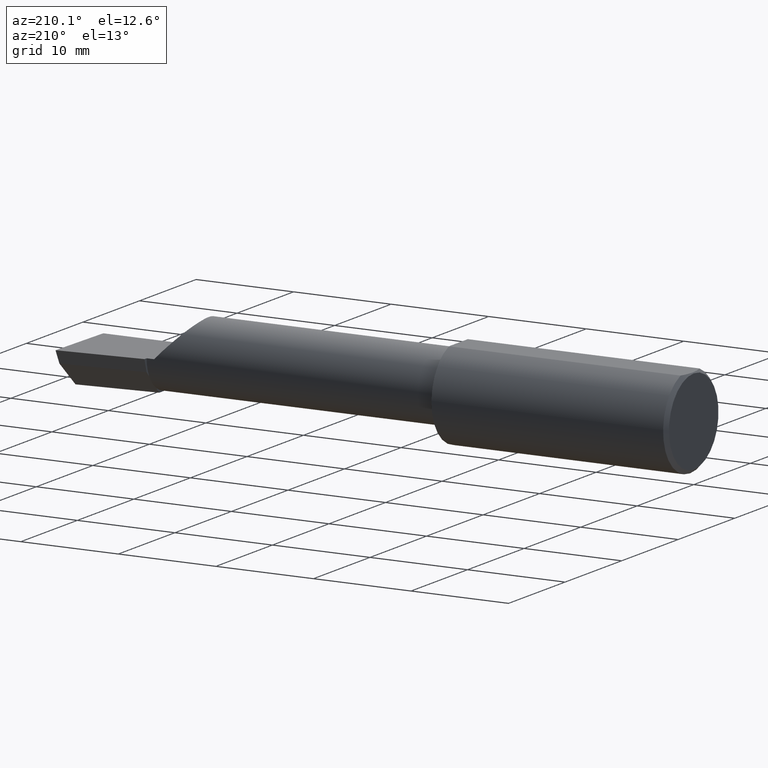
[diagram: clean part render]
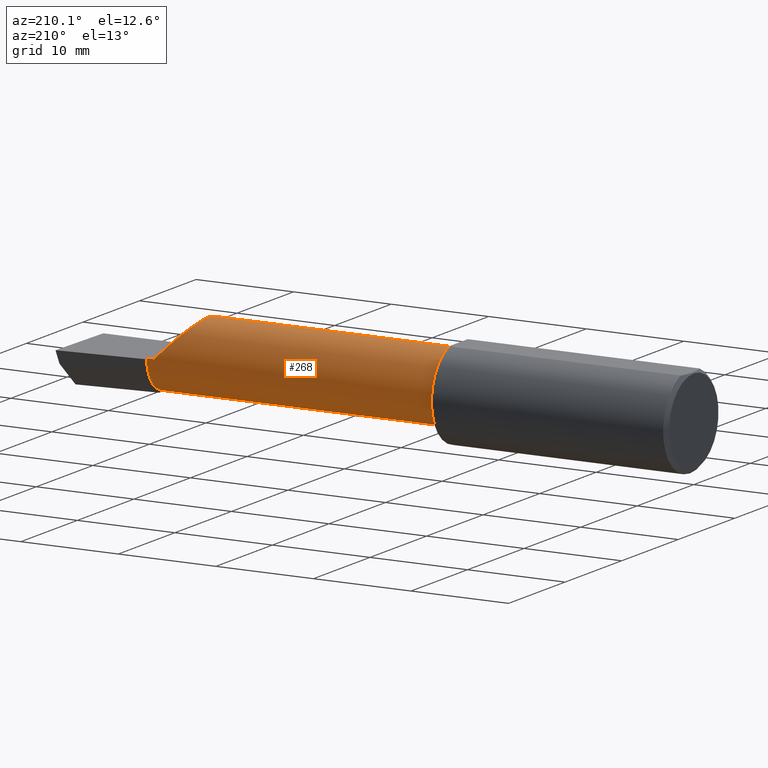
[diagram: same view with one face highlighted and labeled with its STEP entity id]
A machine part, auxiliary view. The second image highlights one B-rep face of the part: STEP entity #268.
In plain terms, the highlighted cylindrical surface (partial cylindrical patch) has radius 3.5573 mm, axis along (-1, -0, -0).
Its self-contained STEP definition (entity closure, byte-faithful):
#11 = CARTESIAN_POINT ( 'NONE',  ( 0.9749999999999999778, -0.1635956445993032859, -0.09130436773856137611 ) ) ;
#12 = VERTEX_POINT ( 'NONE', #504 ) ;
#35 = CARTESIAN_POINT ( 'NONE',  ( 2.500000000000000000, -0.05739999999999999963, -0.1400500000000000633 ) ) ;
#42 = CIRCLE ( 'NONE', #105, 0.1400499999999999245 ) ;
#44 = CARTESIAN_POINT ( 'NONE',  ( -9.564882787816662316E-19, 0.08264999999999995961, 3.267291166268304703E-16 ) ) ;
#46 = ORIENTED_EDGE ( 'NONE', *, *, #97, .T. ) ;
#64 = ORIENTED_EDGE ( 'NONE', *, *, #446, .F. ) ;
#82 = CIRCLE ( 'NONE', #178, 0.1400500000000000356 ) ;
#91 = DIRECTION ( 'NONE',  ( 0.000000000000000000, -1.000000000000000000, 0.000000000000000000 ) ) ;
#92 = AXIS2_PLACEMENT_3D ( 'NONE', #380, #146, #284 ) ;
#94 = CIRCLE ( 'NONE', #337, 0.1400500000000000356 ) ;
#96 = DIRECTION ( 'NONE',  ( -1.000000000000000000, 5.691349986800549142E-18, -0.000000000000000000 ) ) ;
#97 = EDGE_CURVE ( 'NONE', #12, #323, #94, .T. ) ;
#101 = DIRECTION ( 'NONE',  ( 0.000000000000000000, -1.000000000000000000, 0.000000000000000000 ) ) ;
#105 = AXIS2_PLACEMENT_3D ( 'NONE', #140, #187, #142 ) ;
#120 = CARTESIAN_POINT ( 'NONE',  ( 2.038695632261437130, -0.1635956445993029529, 0.09130436773856188959 ) ) ;
#125 = CARTESIAN_POINT ( 'NONE',  ( 2.129999999999999893, 0.08264999999999983471, 1.065442715258197396E-16 ) ) ;
#126 = ORIENTED_EDGE ( 'NONE', *, *, #130, .T. ) ;
#130 = EDGE_CURVE ( 'NONE', #208, #226, #343, .T. ) ;
#135 = CARTESIAN_POINT ( 'NONE',  ( 2.160000000000000142, 0.01441505128072300204, -0.1202356058309979880 ) ) ;
#140 = CARTESIAN_POINT ( 'NONE',  ( 0.9749999999999999778, -0.05740000000000000657, 0.000000000000000000 ) ) ;
#142 = DIRECTION ( 'NONE',  ( 0.000000000000000000, -1.000000000000000000, 0.000000000000000000 ) ) ;
#146 = DIRECTION ( 'NONE',  ( 1.000000000000000000, 6.829619984160658046E-18, 0.000000000000000000 ) ) ;
#154 = ORIENTED_EDGE ( 'NONE', *, *, #358, .T. ) ;
#156 = CARTESIAN_POINT ( 'NONE',  ( 0.000000000000000000, -0.05740000000000001351, 0.000000000000000000 ) ) ;
#171 = CARTESIAN_POINT ( 'NONE',  ( 2.160000000000000142, 0.06495571228477943493, -0.06814016562413294231 ) ) ;
#175 = CARTESIAN_POINT ( 'NONE',  ( 1.921229036482944075, -0.06260079402492431389, 0.2087709635170537925 ) ) ;
#178 = AXIS2_PLACEMENT_3D ( 'NONE', #623, #471, #91 ) ;
#179 = VECTOR ( 'NONE', #520, 39.37007874015748143 ) ;
#187 = DIRECTION ( 'NONE',  ( -1.000000000000000000, -6.829619984160658046E-18, -0.000000000000000000 ) ) ;
#192 = CARTESIAN_POINT ( 'NONE',  ( 1.567500000000000115, -0.1635956445993030639, 0.09130436773856169530 ) ) ;
#195 = DIRECTION ( 'NONE',  ( -1.000000000000000000, -6.829619984160658046E-18, -0.000000000000000000 ) ) ;
#196 = VERTEX_POINT ( 'NONE', #490 ) ;
#197 = LINE ( 'NONE', #44, #221 ) ;
#208 = VERTEX_POINT ( 'NONE', #253 ) ;
#213 = FACE_OUTER_BOUND ( 'NONE', #219, .T. ) ;
#216 = DIRECTION ( 'NONE',  ( 6.829619984160658816E-18, -1.000000000000000000, 0.000000000000000000 ) ) ;
#219 = EDGE_LOOP ( 'NONE', ( #528, #126, #509, #385, #154, #251, #46, #398, #459, #64 ) ) ;
#221 = VECTOR ( 'NONE', #626, 39.37007874015748143 ) ;
#224 = EDGE_CURVE ( 'NONE', #208, #456, #262, .T. ) ;
#226 = VERTEX_POINT ( 'NONE', #11 ) ;
#243 = CARTESIAN_POINT ( 'NONE',  ( 1.567500000000000115, -0.1635956445993030639, -0.09130436773856169530 ) ) ;
#248 = CARTESIAN_POINT ( 'NONE',  ( 2.476787929832031221, -0.09887019258091189755, -0.1400500000000000078 ) ) ;
#251 = ORIENTED_EDGE ( 'NONE', *, *, #437, .T. ) ;
#253 = CARTESIAN_POINT ( 'NONE',  ( 2.481080296960508580, -0.1635956445993030639, -0.09130436773856169530 ) ) ;
#258 = CARTESIAN_POINT ( 'NONE',  ( 2.129999999999999893, 0.08264999999999983471, 1.065442715258197396E-16 ) ) ;
#262 =( BOUNDED_CURVE ( )  B_SPLINE_CURVE ( 3, ( #480, #292, #248, #542 ),
 .UNSPECIFIED., .F., .T. ) 
 B_SPLINE_CURVE_WITH_KNOTS ( ( 4, 4 ),
 ( 5.632580117768154260, 6.493234751459282528 ),
 .UNSPECIFIED. ) 
 CURVE ( )  GEOMETRIC_REPRESENTATION_ITEM ( )  RATIONAL_B_SPLINE_CURVE ( ( 1.000000000000000000, 0.9392195014330942948, 0.9392195014330942948, 1.000000000000000000 ) ) 
 REPRESENTATION_ITEM ( '' )  );
#263 = VERTEX_POINT ( 'NONE', #258 ) ;
#268 = ADVANCED_FACE ( 'NONE', ( #213 ), #445, .T. ) ;
#284 = DIRECTION ( 'NONE',  ( 0.000000000000000000, -1.000000000000000000, 0.000000000000000000 ) ) ;
#292 = CARTESIAN_POINT ( 'NONE',  ( 2.477925907309857401, -0.1365595166907236646, -0.1227499502647107360 ) ) ;
#305 = DIRECTION ( 'NONE',  ( -1.000000000000000000, -6.829619984160658046E-18, -0.000000000000000000 ) ) ;
#322 =( BOUNDED_CURVE ( )  B_SPLINE_CURVE ( 3, ( #120, #175, #559, #125 ),
 .UNSPECIFIED., .F., .T. ) 
 B_SPLINE_CURVE_WITH_KNOTS ( ( 4, 4 ),
 ( 5.422530673488458852, 7.853981633974482790 ),
 .UNSPECIFIED. ) 
 CURVE ( )  GEOMETRIC_REPRESENTATION_ITEM ( )  RATIONAL_B_SPLINE_CURVE ( ( 1.000000000000000000, 0.5651045289226863666, 0.5651045289226863666, 1.000000000000000000 ) ) 
 REPRESENTATION_ITEM ( '' )  );
#323 = VERTEX_POINT ( 'NONE', #171 ) ;
#332 = DIRECTION ( 'NONE',  ( 1.000000000000000000, 6.829619984160658046E-18, 0.000000000000000000 ) ) ;
#337 = AXIS2_PLACEMENT_3D ( 'NONE', #580, #195, #101 ) ;
#343 = LINE ( 'NONE', #243, #179 ) ;
#357 = AXIS2_PLACEMENT_3D ( 'NONE', #156, #305, #216 ) ;
#358 = EDGE_CURVE ( 'NONE', #625, #263, #322, .T. ) ;
#377 = LINE ( 'NONE', #35, #403 ) ;
#380 = CARTESIAN_POINT ( 'NONE',  ( 2.160000000000000142, -0.05739999999999999963, 0.000000000000000000 ) ) ;
#385 = ORIENTED_EDGE ( 'NONE', *, *, #613, .T. ) ;
#391 = VERTEX_POINT ( 'NONE', #404 ) ;
#398 = ORIENTED_EDGE ( 'NONE', *, *, #486, .F. ) ;
#403 = VECTOR ( 'NONE', #96, 39.37007874015748143 ) ;
#404 = CARTESIAN_POINT ( 'NONE',  ( 2.160000000000000142, -0.05739999999999999963, -0.1400500000000000633 ) ) ;
#437 = EDGE_CURVE ( 'NONE', #263, #12, #197, .T. ) ;
#441 = CARTESIAN_POINT ( 'NONE',  ( 2.038695632261437130, -0.1635956445993029529, 0.09130436773856188959 ) ) ;
#445 = CYLINDRICAL_SURFACE ( 'NONE', #357, 0.1400499999999999801 ) ;
#446 = EDGE_CURVE ( 'NONE', #456, #391, #377, .T. ) ;
#456 = VERTEX_POINT ( 'NONE', #474 ) ;
#459 = ORIENTED_EDGE ( 'NONE', *, *, #468, .T. ) ;
#468 = EDGE_CURVE ( 'NONE', #560, #391, #82, .T. ) ;
#471 = DIRECTION ( 'NONE',  ( -1.000000000000000000, -6.829619984160658046E-18, -0.000000000000000000 ) ) ;
#474 = CARTESIAN_POINT ( 'NONE',  ( 2.477873865042410806, -0.05739999999999999963, -0.1400500000000000633 ) ) ;
#480 = CARTESIAN_POINT ( 'NONE',  ( 2.481080296960508580, -0.1635956445993030639, -0.09130436773856169530 ) ) ;
#486 = EDGE_CURVE ( 'NONE', #560, #323, #525, .T. ) ;
#490 = CARTESIAN_POINT ( 'NONE',  ( 0.9749999999999999778, -0.1635956445993030917, 0.09130436773856159816 ) ) ;
#504 = CARTESIAN_POINT ( 'NONE',  ( 2.160000000000000142, 0.08265000000000004288, 3.267291166268306182E-16 ) ) ;
#509 = ORIENTED_EDGE ( 'NONE', *, *, #557, .F. ) ;
#511 = VECTOR ( 'NONE', #332, 39.37007874015748143 ) ;
#520 = DIRECTION ( 'NONE',  ( -1.000000000000000000, -6.829619984160658046E-18, -0.000000000000000000 ) ) ;
#525 = CIRCLE ( 'NONE', #92, 0.1400499999999999801 ) ;
#528 = ORIENTED_EDGE ( 'NONE', *, *, #224, .F. ) ;
#542 = CARTESIAN_POINT ( 'NONE',  ( 2.477873865042410806, -0.05739999999999999963, -0.1400500000000000633 ) ) ;
#557 = EDGE_CURVE ( 'NONE', #196, #226, #42, .T. ) ;
#559 = CARTESIAN_POINT ( 'NONE',  ( 1.975085956200449022, 0.08264999999999997349, 0.1549140437995493169 ) ) ;
#560 = VERTEX_POINT ( 'NONE', #135 ) ;
#580 = CARTESIAN_POINT ( 'NONE',  ( 2.160000000000000142, -0.05739999999999999963, 0.000000000000000000 ) ) ;
#613 = EDGE_CURVE ( 'NONE', #196, #625, #620, .T. ) ;
#620 = LINE ( 'NONE', #192, #511 ) ;
#623 = CARTESIAN_POINT ( 'NONE',  ( 2.160000000000000142, -0.05739999999999999963, 0.000000000000000000 ) ) ;
#625 = VERTEX_POINT ( 'NONE', #441 ) ;
#626 = DIRECTION ( 'NONE',  ( 1.000000000000000000, 6.829619984160658046E-18, 0.000000000000000000 ) ) ;